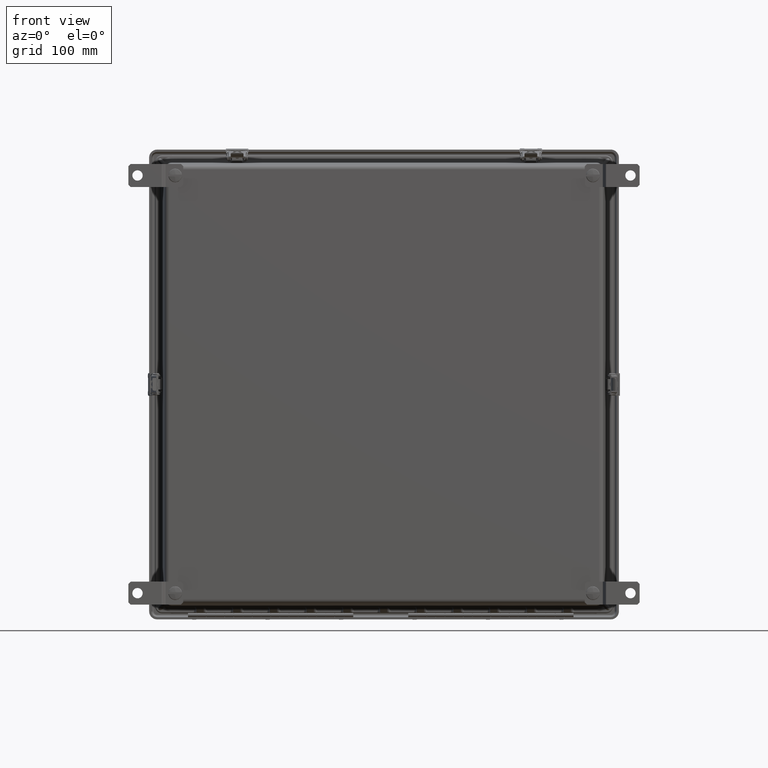
[diagram: clean part render]
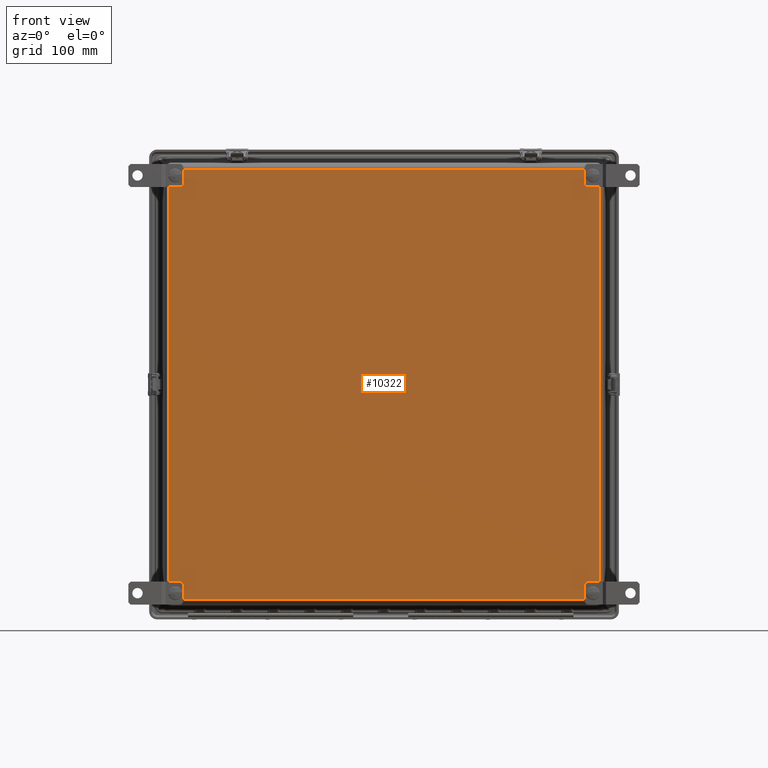
[diagram: same view with one face highlighted and labeled with its STEP entity id]
A machine part, front view. The second image highlights one B-rep face of the part: STEP entity #10322.
In plain terms, the highlighted planar face has unit normal (0, 1, 0).
Its self-contained STEP definition (entity closure, byte-faithful):
#770 = CARTESIAN_POINT ( 'NONE',  ( -11.52481800658100000, -10.12500000000000000, 11.70759315182287000 ) ) ;
#2124 = CARTESIAN_POINT ( 'NONE',  ( 11.37500000000000000, -10.12500000000000000, -11.37500000000000000 ) ) ;
#2492 = DIRECTION ( 'NONE',  ( 0.0000000000000000000, -0.0000000000000000000, 1.000000000000000000 ) ) ;
#2756 = VERTEX_POINT ( 'NONE', #52939 ) ;
#2810 = VERTEX_POINT ( 'NONE', #4405 ) ;
#2842 = VERTEX_POINT ( 'NONE', #43725 ) ;
#3457 = LINE ( 'NONE', #11372, #14999 ) ;
#3669 = VERTEX_POINT ( 'NONE', #33259 ) ;
#3697 = CARTESIAN_POINT ( 'NONE',  ( 11.68188661029147500, -10.12500000000000000, 11.58688462391710800 ) ) ;
#3698 = DIRECTION ( 'NONE',  ( 0.0000000000000000000, -1.000000000000000000, 0.0000000000000000000 ) ) ;
#3738 = CARTESIAN_POINT ( 'NONE',  ( -11.68188661029147600, -10.12500000000000000, -11.58688462391710400 ) ) ;
#4001 = VERTEX_POINT ( 'NONE', #45184 ) ;
#4331 = EDGE_CURVE ( 'NONE', #32063, #35450, #25586, .T. ) ;
#4405 = CARTESIAN_POINT ( 'NONE',  ( 11.37500000000000000, -10.12500000000000000, 11.68699999999999900 ) ) ;
#4542 = VERTEX_POINT ( 'NONE', #6819 ) ;
#4738 = DIRECTION ( 'NONE',  ( 0.0000000000000000000, -1.000000000000000000, 0.0000000000000000000 ) ) ;
#5135 =( BOUNDED_CURVE ( )  B_SPLINE_CURVE ( 3, ( #52661, #18303, #3697, #38071 ),
 .UNSPECIFIED., .F., .F. ) 
 B_SPLINE_CURVE_WITH_KNOTS ( ( 4, 4 ),
 ( 5.497939437029726800, 6.283185307179586200 ),
 .UNSPECIFIED. ) 
 CURVE ( )  GEOMETRIC_REPRESENTATION_ITEM ( )  RATIONAL_B_SPLINE_CURVE ( ( 1.000000000000000000, 0.9492724465894306600, 0.9492724465894306600, 1.000000000000000000 ) ) 
 REPRESENTATION_ITEM ( '' )  );
#5496 = FACE_BOUND ( 'NONE', #58172, .T. ) ;
#6323 = EDGE_CURVE ( 'NONE', #39465, #63530, #37581, .T. ) ;
#6513 =( BOUNDED_CURVE ( )  B_SPLINE_CURVE ( 3, ( #15368, #770, #45047, #15573 ),
 .UNSPECIFIED., .F., .F. ) 
 B_SPLINE_CURVE_WITH_KNOTS ( ( 4, 4 ),
 ( 5.497939437029717900, 6.283185307179586200 ),
 .UNSPECIFIED. ) 
 CURVE ( )  GEOMETRIC_REPRESENTATION_ITEM ( )  RATIONAL_B_SPLINE_CURVE ( ( 1.000000000000000000, 0.9492724465894295500, 0.9492724465894295500, 1.000000000000000000 ) ) 
 REPRESENTATION_ITEM ( '' )  );
#6664 = CARTESIAN_POINT ( 'NONE',  ( 11.63438561710429100, -10.12500000000000000, -11.63438561710429300 ) ) ;
#6819 = CARTESIAN_POINT ( 'NONE',  ( 11.70759315182287200, -10.12500000000000000, 11.45763122803378000 ) ) ;
#7022 = FACE_OUTER_BOUND ( 'NONE', #39322, .T. ) ;
#7059 = DIRECTION ( 'NONE',  ( 0.0000000000000000000, 0.0000000000000000000, 1.000000000000000000 ) ) ;
#7113 = DIRECTION ( 'NONE',  ( 0.0000000000000000000, -1.000000000000000000, 0.0000000000000000000 ) ) ;
#7603 = CARTESIAN_POINT ( 'NONE',  ( 11.68188661029147600, -10.12500000000000000, -11.58688462391710800 ) ) ;
#7647 = EDGE_CURVE ( 'NONE', #39376, #2756, #24932, .T. ) ;
#8012 = CARTESIAN_POINT ( 'NONE',  ( 11.63438561710429100, -10.12500000000000000, -11.63438561710429300 ) ) ;
#9733 = CARTESIAN_POINT ( 'NONE',  ( 11.63438561710428900, -10.12500000000000000, 11.63438561710429300 ) ) ;
#10322 = ADVANCED_FACE ( 'NONE', ( #7022, #17013, #5496, #56181, #43154 ), #22036, .F. ) ;
#11372 = CARTESIAN_POINT ( 'NONE',  ( 11.70759315182287400, -10.12500000000000000, 11.45334362002360100 ) ) ;
#11588 = CARTESIAN_POINT ( 'NONE',  ( -11.70759315182287400, -10.12500000000000000, 11.52481800658100000 ) ) ;
#11791 = CARTESIAN_POINT ( 'NONE',  ( -11.68188661029147600, -10.12500000000000000, 11.58688462391710200 ) ) ;
#11856 = EDGE_CURVE ( 'NONE', #33950, #39465, #6513, .T. ) ;
#12611 = VERTEX_POINT ( 'NONE', #6664 ) ;
#12842 = AXIS2_PLACEMENT_3D ( 'NONE', #34174, #4738, #39105 ) ;
#12946 = CARTESIAN_POINT ( 'NONE',  ( 11.70759315182287400, -10.12500000000000000, -11.52481800658100400 ) ) ;
#13100 = CARTESIAN_POINT ( 'NONE',  ( 11.37500000000000000, -10.12500000000000000, 11.06299999999999900 ) ) ;
#13794 = CARTESIAN_POINT ( 'NONE',  ( 11.70759315182287400, -10.12500000000000000, -11.45763122803377800 ) ) ;
#14025 = CARTESIAN_POINT ( 'NONE',  ( 11.37500000000000000, -10.12500000000000000, -11.06299999999999900 ) ) ;
#14377 = EDGE_LOOP ( 'NONE', ( #62134, #57412 ) ) ;
#14692 = EDGE_CURVE ( 'NONE', #42838, #39460, #37202, .T. ) ;
#14698 = CARTESIAN_POINT ( 'NONE',  ( 11.52481800658100000, -10.12500000000000000, 11.70759315182287500 ) ) ;
#14999 = VECTOR ( 'NONE', #30915, 39.37007874015748100 ) ;
#15368 = CARTESIAN_POINT ( 'NONE',  ( -11.45763122803377600, -10.12500000000000000, 11.70759315182287200 ) ) ;
#15573 = CARTESIAN_POINT ( 'NONE',  ( -11.63438561710429100, -10.12500000000000000, 11.63438561710428900 ) ) ;
#16620 =( BOUNDED_CURVE ( )  B_SPLINE_CURVE ( 3, ( #8012, #7603, #12946, #47352 ),
 .UNSPECIFIED., .F., .T. ) 
 B_SPLINE_CURVE_WITH_KNOTS ( ( 4, 4 ),
 ( 0.0000000000000000000, 0.7852458701498681300 ),
 .UNSPECIFIED. ) 
 CURVE ( )  GEOMETRIC_REPRESENTATION_ITEM ( )  RATIONAL_B_SPLINE_CURVE ( ( 1.000000000000000000, 0.9492724465894296600, 0.9492724465894296600, 1.000000000000000000 ) ) 
 REPRESENTATION_ITEM ( '' )  );
#16736 = CARTESIAN_POINT ( 'NONE',  ( -11.63438561710429100, -10.12500000000000000, 11.63438561710428900 ) ) ;
#17013 = FACE_BOUND ( 'NONE', #59677, .T. ) ;
#17531 = AXIS2_PLACEMENT_3D ( 'NONE', #56275, #26884, #61206 ) ;
#18303 = CARTESIAN_POINT ( 'NONE',  ( 11.70759315182287200, -10.12500000000000000, 11.52481800658100800 ) ) ;
#18510 = AXIS2_PLACEMENT_3D ( 'NONE', #19825, #54181, #24747 ) ;
#19612 = CARTESIAN_POINT ( 'NONE',  ( -11.45763122803377600, -10.12500000000000000, -11.70759315182287400 ) ) ;
#19825 = CARTESIAN_POINT ( 'NONE',  ( -11.37500000000001200, -10.12500000000000000, -11.37499999999998800 ) ) ;
#19839 = ORIENTED_EDGE ( 'NONE', *, *, #14692, .T. ) ;
#20254 = EDGE_CURVE ( 'NONE', #22852, #40106, #40399, .T. ) ;
#20635 = ORIENTED_EDGE ( 'NONE', *, *, #7647, .F. ) ;
#20664 = CARTESIAN_POINT ( 'NONE',  ( -11.45334362002359900, -10.12500000000000000, 11.70759315182287400 ) ) ;
#22036 = PLANE ( 'NONE',  #38230 ) ;
#22399 = DIRECTION ( 'NONE',  ( 0.0000000000000000000, -1.000000000000000000, 0.0000000000000000000 ) ) ;
#22740 = LINE ( 'NONE', #43876, #34326 ) ;
#22852 = VERTEX_POINT ( 'NONE', #46398 ) ;
#23132 = VERTEX_POINT ( 'NONE', #43544 ) ;
#23587 = CARTESIAN_POINT ( 'NONE',  ( -11.37500000000001200, -10.12500000000000000, 11.37499999999998800 ) ) ;
#24597 = CARTESIAN_POINT ( 'NONE',  ( -11.52481800658100200, -10.12500000000000000, -11.70759315182287400 ) ) ;
#24731 = AXIS2_PLACEMENT_3D ( 'NONE', #33145, #3698, #38072 ) ;
#24747 = DIRECTION ( 'NONE',  ( 0.0000000000000000000, 0.0000000000000000000, -1.000000000000000000 ) ) ;
#24932 = CIRCLE ( 'NONE', #17531, 0.3120000000000003900 ) ;
#25275 =( BOUNDED_CURVE ( )  B_SPLINE_CURVE ( 3, ( #58300, #33686, #63253, #33906 ),
 .UNSPECIFIED., .F., .F. ) 
 B_SPLINE_CURVE_WITH_KNOTS ( ( 4, 4 ),
 ( 5.497939437029717900, 6.283185307179586200 ),
 .UNSPECIFIED. ) 
 CURVE ( )  GEOMETRIC_REPRESENTATION_ITEM ( )  RATIONAL_B_SPLINE_CURVE ( ( 1.000000000000000000, 0.9492724465894295500, 0.9492724465894295500, 1.000000000000000000 ) ) 
 REPRESENTATION_ITEM ( '' )  );
#25320 = EDGE_CURVE ( 'NONE', #2842, #33950, #50286, .T. ) ;
#25586 = CIRCLE ( 'NONE', #44668, 0.3120000000000003900 ) ;
#25744 = CARTESIAN_POINT ( 'NONE',  ( -11.37500000000001200, -10.12500000000000000, -11.06299999999998600 ) ) ;
#26298 = CARTESIAN_POINT ( 'NONE',  ( 11.45334362002360400, -10.12500000000000000, -11.70759315182287500 ) ) ;
#26884 = DIRECTION ( 'NONE',  ( 0.0000000000000000000, -1.000000000000000000, 0.0000000000000000000 ) ) ;
#26976 = CARTESIAN_POINT ( 'NONE',  ( -12.12999999999999900, -10.12500000000000000, 12.12999999999999900 ) ) ;
#27565 = CARTESIAN_POINT ( 'NONE',  ( -11.70759315182287400, -10.12500000000000000, 11.45763122803377100 ) ) ;
#27593 = ORIENTED_EDGE ( 'NONE', *, *, #6323, .T. ) ;
#27900 = ORIENTED_EDGE ( 'NONE', *, *, #59671, .T. ) ;
#28568 = DIRECTION ( 'NONE',  ( 0.0000000000000000000, 0.0000000000000000000, 1.000000000000000000 ) ) ;
#29266 = DIRECTION ( 'NONE',  ( 0.0000000000000000000, -0.0000000000000000000, -1.000000000000000000 ) ) ;
#29505 = CARTESIAN_POINT ( 'NONE',  ( -11.63438561710429100, -10.12500000000000000, 11.63438561710428900 ) ) ;
#29876 = VERTEX_POINT ( 'NONE', #13794 ) ;
#30915 = DIRECTION ( 'NONE',  ( -0.0000000000000000000, -0.0000000000000000000, 1.000000000000000000 ) ) ;
#31227 = CIRCLE ( 'NONE', #18510, 0.3120000000000003900 ) ;
#32063 = VERTEX_POINT ( 'NONE', #63119 ) ;
#32725 = ORIENTED_EDGE ( 'NONE', *, *, #62135, .T. ) ;
#33145 = CARTESIAN_POINT ( 'NONE',  ( -11.37500000000001200, -10.12500000000000000, -11.37499999999998800 ) ) ;
#33259 = CARTESIAN_POINT ( 'NONE',  ( -11.70759315182287400, -10.12500000000000000, -11.45763122803377600 ) ) ;
#33605 = EDGE_CURVE ( 'NONE', #59061, #2810, #53181, .T. ) ;
#33686 = CARTESIAN_POINT ( 'NONE',  ( 11.52481800658100000, -10.12500000000000000, -11.70759315182287400 ) ) ;
#33906 = CARTESIAN_POINT ( 'NONE',  ( 11.63438561710429100, -10.12500000000000000, -11.63438561710429300 ) ) ;
#33950 = VERTEX_POINT ( 'NONE', #57461 ) ;
#34174 = CARTESIAN_POINT ( 'NONE',  ( 11.37500000000000000, -10.12500000000000000, 11.37500000000000000 ) ) ;
#34326 = VECTOR ( 'NONE', #29266, 39.37007874015748100 ) ;
#34358 = EDGE_CURVE ( 'NONE', #2810, #59061, #46996, .T. ) ;
#35450 = VERTEX_POINT ( 'NONE', #51885 ) ;
#36206 = DIRECTION ( 'NONE',  ( 1.000000000000000000, -0.0000000000000000000, -9.008567167895345000E-017 ) ) ;
#36496 = DIRECTION ( 'NONE',  ( 0.0000000000000000000, -1.000000000000000000, 0.0000000000000000000 ) ) ;
#36553 = CARTESIAN_POINT ( 'NONE',  ( -11.37500000000001200, -10.12500000000000000, 11.37499999999998800 ) ) ;
#36565 = ORIENTED_EDGE ( 'NONE', *, *, #52190, .T. ) ;
#37202 =( BOUNDED_CURVE ( )  B_SPLINE_CURVE ( 3, ( #39432, #58921, #24597, #44413 ),
 .UNSPECIFIED., .F., .F. ) 
 B_SPLINE_CURVE_WITH_KNOTS ( ( 4, 4 ),
 ( 0.0000000000000000000, 0.7852458701498681300 ),
 .UNSPECIFIED. ) 
 CURVE ( )  GEOMETRIC_REPRESENTATION_ITEM ( )  RATIONAL_B_SPLINE_CURVE ( ( 1.000000000000000000, 0.9492724465894296600, 0.9492724465894296600, 1.000000000000000000 ) ) 
 REPRESENTATION_ITEM ( '' )  );
#37581 =( BOUNDED_CURVE ( )  B_SPLINE_CURVE ( 3, ( #16736, #11791, #11588, #51094 ),
 .UNSPECIFIED., .F., .F. ) 
 B_SPLINE_CURVE_WITH_KNOTS ( ( 4, 4 ),
 ( 0.0000000000000000000, 0.7852458701498769000 ),
 .UNSPECIFIED. ) 
 CURVE ( )  GEOMETRIC_REPRESENTATION_ITEM ( )  RATIONAL_B_SPLINE_CURVE ( ( 1.000000000000000000, 0.9492724465894284400, 0.9492724465894284400, 1.000000000000000000 ) ) 
 REPRESENTATION_ITEM ( '' )  );
#37894 = EDGE_CURVE ( 'NONE', #4542, #23132, #5135, .T. ) ;
#38071 = CARTESIAN_POINT ( 'NONE',  ( 11.63438561710428900, -10.12500000000000000, 11.63438561710429300 ) ) ;
#38072 = DIRECTION ( 'NONE',  ( 0.0000000000000000000, 0.0000000000000000000, -1.000000000000000000 ) ) ;
#38118 = CARTESIAN_POINT ( 'NONE',  ( -11.63438561710429100, -10.12500000000000000, -11.63438561710429100 ) ) ;
#38230 = AXIS2_PLACEMENT_3D ( 'NONE', #26976, #56168, #2492 ) ;
#38547 = EDGE_CURVE ( 'NONE', #2756, #39376, #41211, .T. ) ;
#39105 = DIRECTION ( 'NONE',  ( 0.0000000000000000000, 0.0000000000000000000, -1.000000000000000000 ) ) ;
#39322 = EDGE_LOOP ( 'NONE', ( #42617, #52175, #27900, #43028, #53560, #36565, #55934, #46965, #27593, #32725, #62667, #19839 ) ) ;
#39376 = VERTEX_POINT ( 'NONE', #14025 ) ;
#39432 = CARTESIAN_POINT ( 'NONE',  ( -11.63438561710429100, -10.12500000000000000, -11.63438561710429100 ) ) ;
#39460 = VERTEX_POINT ( 'NONE', #19612 ) ;
#39465 = VERTEX_POINT ( 'NONE', #29505 ) ;
#39488 = EDGE_CURVE ( 'NONE', #40106, #22852, #31227, .T. ) ;
#40106 = VERTEX_POINT ( 'NONE', #25744 ) ;
#40120 = EDGE_CURVE ( 'NONE', #29876, #4542, #3457, .T. ) ;
#40265 = AXIS2_PLACEMENT_3D ( 'NONE', #36553, #7113, #41499 ) ;
#40399 = CIRCLE ( 'NONE', #24731, 0.3120000000000003900 ) ;
#40726 =( BOUNDED_CURVE ( )  B_SPLINE_CURVE ( 3, ( #9733, #53773, #14698, #49082 ),
 .UNSPECIFIED., .F., .F. ) 
 B_SPLINE_CURVE_WITH_KNOTS ( ( 4, 4 ),
 ( 0.0000000000000000000, 0.7852458701498769000 ),
 .UNSPECIFIED. ) 
 CURVE ( )  GEOMETRIC_REPRESENTATION_ITEM ( )  RATIONAL_B_SPLINE_CURVE ( ( 1.000000000000000000, 0.9492724465894284400, 0.9492724465894284400, 1.000000000000000000 ) ) 
 REPRESENTATION_ITEM ( '' )  );
#41146 = ORIENTED_EDGE ( 'NONE', *, *, #33605, .F. ) ;
#41211 = CIRCLE ( 'NONE', #59608, 0.3120000000000003900 ) ;
#41392 = VECTOR ( 'NONE', #36206, 39.37007874015748100 ) ;
#41499 = DIRECTION ( 'NONE',  ( 0.0000000000000000000, 0.0000000000000000000, 1.000000000000000000 ) ) ;
#42617 = ORIENTED_EDGE ( 'NONE', *, *, #59494, .T. ) ;
#42838 = VERTEX_POINT ( 'NONE', #56862 ) ;
#43028 = ORIENTED_EDGE ( 'NONE', *, *, #40120, .T. ) ;
#43154 = FACE_BOUND ( 'NONE', #46757, .T. ) ;
#43544 = CARTESIAN_POINT ( 'NONE',  ( 11.63438561710428900, -10.12500000000000000, 11.63438561710429300 ) ) ;
#43725 = CARTESIAN_POINT ( 'NONE',  ( 11.45763122803377100, -10.12500000000000000, 11.70759315182287500 ) ) ;
#43876 = CARTESIAN_POINT ( 'NONE',  ( -11.70759315182287400, -10.12500000000000000, -11.45334362002359900 ) ) ;
#44413 = CARTESIAN_POINT ( 'NONE',  ( -11.45763122803377600, -10.12500000000000000, -11.70759315182287400 ) ) ;
#44668 = AXIS2_PLACEMENT_3D ( 'NONE', #23587, #57899, #28568 ) ;
#45047 = CARTESIAN_POINT ( 'NONE',  ( -11.58688462391710400, -10.12500000000000000, 11.68188661029147500 ) ) ;
#45184 = CARTESIAN_POINT ( 'NONE',  ( 11.45763122803377600, -10.12500000000000000, -11.70759315182287500 ) ) ;
#45195 = DIRECTION ( 'NONE',  ( -1.000000000000000000, 0.0000000000000000000, -9.008567167895345000E-017 ) ) ;
#45373 = ORIENTED_EDGE ( 'NONE', *, *, #20254, .F. ) ;
#46398 = CARTESIAN_POINT ( 'NONE',  ( -11.37500000000001200, -10.12500000000000000, -11.68699999999998700 ) ) ;
#46757 = EDGE_LOOP ( 'NONE', ( #41146, #62017 ) ) ;
#46965 = ORIENTED_EDGE ( 'NONE', *, *, #11856, .T. ) ;
#46996 = CIRCLE ( 'NONE', #55268, 0.3120000000000003900 ) ;
#47190 = ORIENTED_EDGE ( 'NONE', *, *, #39488, .F. ) ;
#47352 = CARTESIAN_POINT ( 'NONE',  ( 11.70759315182287400, -10.12500000000000000, -11.45763122803377800 ) ) ;
#48622 = ORIENTED_EDGE ( 'NONE', *, *, #38547, .F. ) ;
#49082 = CARTESIAN_POINT ( 'NONE',  ( 11.45763122803377100, -10.12500000000000000, 11.70759315182287500 ) ) ;
#50272 = EDGE_CURVE ( 'NONE', #4001, #12611, #25275, .T. ) ;
#50286 = LINE ( 'NONE', #20664, #63281 ) ;
#51094 = CARTESIAN_POINT ( 'NONE',  ( -11.70759315182287400, -10.12500000000000000, 11.45763122803377100 ) ) ;
#51862 = CARTESIAN_POINT ( 'NONE',  ( 11.37500000000000000, -10.12500000000000000, 11.37500000000000000 ) ) ;
#51885 = CARTESIAN_POINT ( 'NONE',  ( -11.37500000000001200, -10.12500000000000000, 11.68699999999998700 ) ) ;
#52019 = EDGE_CURVE ( 'NONE', #3669, #42838, #63481, .T. ) ;
#52175 = ORIENTED_EDGE ( 'NONE', *, *, #50272, .T. ) ;
#52190 = EDGE_CURVE ( 'NONE', #23132, #2842, #40726, .T. ) ;
#52661 = CARTESIAN_POINT ( 'NONE',  ( 11.70759315182287200, -10.12500000000000000, 11.45763122803378000 ) ) ;
#52939 = CARTESIAN_POINT ( 'NONE',  ( 11.37500000000000000, -10.12500000000000000, -11.68699999999999900 ) ) ;
#53181 = CIRCLE ( 'NONE', #12842, 0.3120000000000003900 ) ;
#53560 = ORIENTED_EDGE ( 'NONE', *, *, #37894, .T. ) ;
#53773 = CARTESIAN_POINT ( 'NONE',  ( 11.58688462391710200, -10.12500000000000000, 11.68188661029148200 ) ) ;
#54181 = DIRECTION ( 'NONE',  ( 0.0000000000000000000, -1.000000000000000000, 0.0000000000000000000 ) ) ;
#55268 = AXIS2_PLACEMENT_3D ( 'NONE', #51862, #22399, #56735 ) ;
#55934 = ORIENTED_EDGE ( 'NONE', *, *, #25320, .T. ) ;
#55949 = LINE ( 'NONE', #26298, #41392 ) ;
#56168 = DIRECTION ( 'NONE',  ( 0.0000000000000000000, 1.000000000000000000, 0.0000000000000000000 ) ) ;
#56181 = FACE_BOUND ( 'NONE', #14377, .T. ) ;
#56275 = CARTESIAN_POINT ( 'NONE',  ( 11.37500000000000000, -10.12500000000000000, -11.37500000000000000 ) ) ;
#56735 = DIRECTION ( 'NONE',  ( 0.0000000000000000000, 0.0000000000000000000, -1.000000000000000000 ) ) ;
#56862 = CARTESIAN_POINT ( 'NONE',  ( -11.63438561710429100, -10.12500000000000000, -11.63438561710429100 ) ) ;
#57412 = ORIENTED_EDGE ( 'NONE', *, *, #4331, .F. ) ;
#57461 = CARTESIAN_POINT ( 'NONE',  ( -11.45763122803377600, -10.12500000000000000, 11.70759315182287200 ) ) ;
#57604 = CARTESIAN_POINT ( 'NONE',  ( -11.70759315182287400, -10.12500000000000000, -11.45763122803377600 ) ) ;
#57899 = DIRECTION ( 'NONE',  ( 0.0000000000000000000, -1.000000000000000000, 0.0000000000000000000 ) ) ;
#58172 = EDGE_LOOP ( 'NONE', ( #20635, #48622 ) ) ;
#58300 = CARTESIAN_POINT ( 'NONE',  ( 11.45763122803377600, -10.12500000000000000, -11.70759315182287500 ) ) ;
#58921 = CARTESIAN_POINT ( 'NONE',  ( -11.58688462391710400, -10.12500000000000000, -11.68188661029147600 ) ) ;
#59061 = VERTEX_POINT ( 'NONE', #13100 ) ;
#59494 = EDGE_CURVE ( 'NONE', #39460, #4001, #55949, .T. ) ;
#59608 = AXIS2_PLACEMENT_3D ( 'NONE', #2124, #36496, #7059 ) ;
#59671 = EDGE_CURVE ( 'NONE', #12611, #29876, #16620, .T. ) ;
#59677 = EDGE_LOOP ( 'NONE', ( #45373, #47190 ) ) ;
#61206 = DIRECTION ( 'NONE',  ( 0.0000000000000000000, 0.0000000000000000000, 1.000000000000000000 ) ) ;
#61224 = EDGE_CURVE ( 'NONE', #35450, #32063, #61236, .T. ) ;
#61236 = CIRCLE ( 'NONE', #40265, 0.3120000000000003900 ) ;
#62017 = ORIENTED_EDGE ( 'NONE', *, *, #34358, .F. ) ;
#62134 = ORIENTED_EDGE ( 'NONE', *, *, #61224, .F. ) ;
#62135 = EDGE_CURVE ( 'NONE', #63530, #3669, #22740, .T. ) ;
#62342 = CARTESIAN_POINT ( 'NONE',  ( -11.70759315182287200, -10.12500000000000000, -11.52481800658100000 ) ) ;
#62667 = ORIENTED_EDGE ( 'NONE', *, *, #52019, .T. ) ;
#63119 = CARTESIAN_POINT ( 'NONE',  ( -11.37500000000001200, -10.12500000000000000, 11.06299999999998600 ) ) ;
#63253 = CARTESIAN_POINT ( 'NONE',  ( 11.58688462391710400, -10.12500000000000000, -11.68188661029148200 ) ) ;
#63281 = VECTOR ( 'NONE', #45195, 39.37007874015748100 ) ;
#63481 =( BOUNDED_CURVE ( )  B_SPLINE_CURVE ( 3, ( #57604, #62342, #3738, #38118 ),
 .UNSPECIFIED., .F., .F. ) 
 B_SPLINE_CURVE_WITH_KNOTS ( ( 4, 4 ),
 ( 5.497939437029717900, 6.283185307179586200 ),
 .UNSPECIFIED. ) 
 CURVE ( )  GEOMETRIC_REPRESENTATION_ITEM ( )  RATIONAL_B_SPLINE_CURVE ( ( 1.000000000000000000, 0.9492724465894295500, 0.9492724465894295500, 1.000000000000000000 ) ) 
 REPRESENTATION_ITEM ( '' )  );
#63530 = VERTEX_POINT ( 'NONE', #27565 ) ;